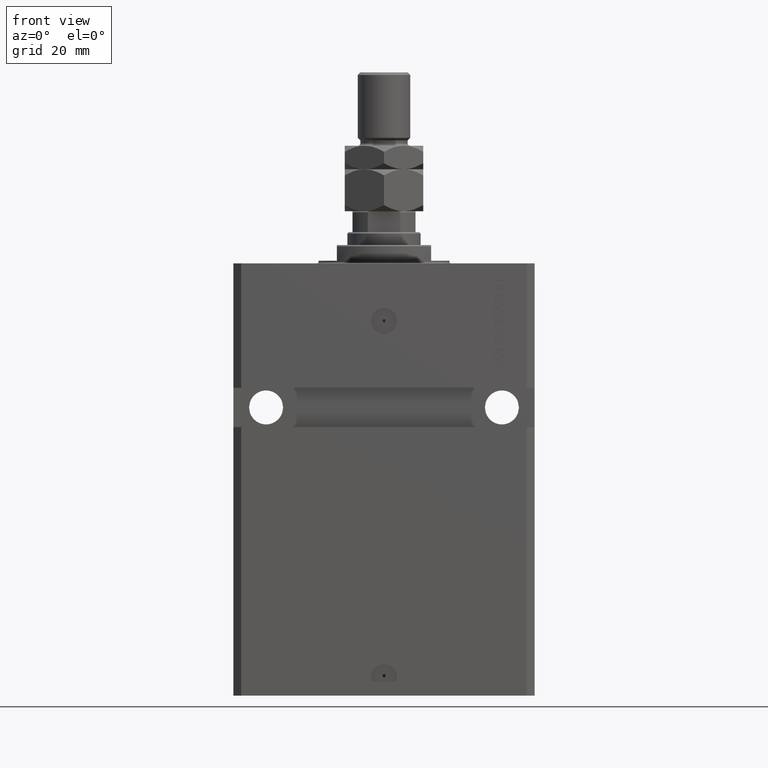
[diagram: clean part render]
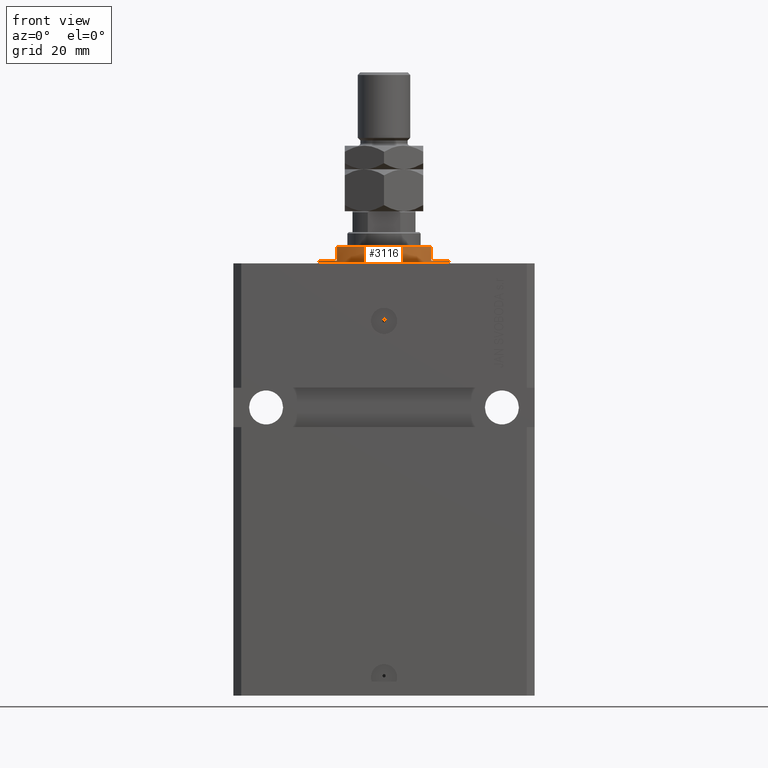
[diagram: same view with one face highlighted and labeled with its STEP entity id]
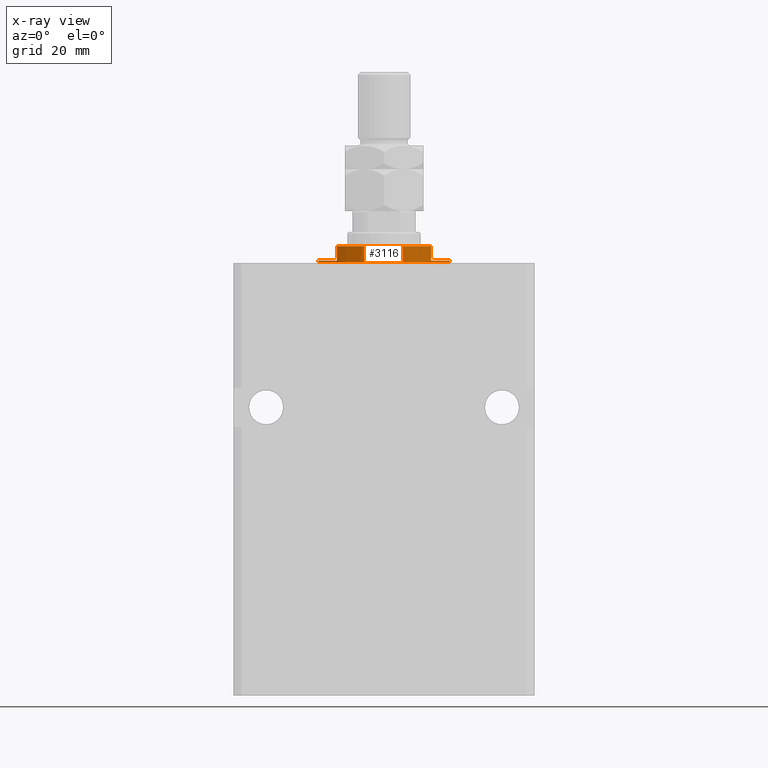
[diagram: x-ray of the same camera — body ghosted, the highlighted face saturated]
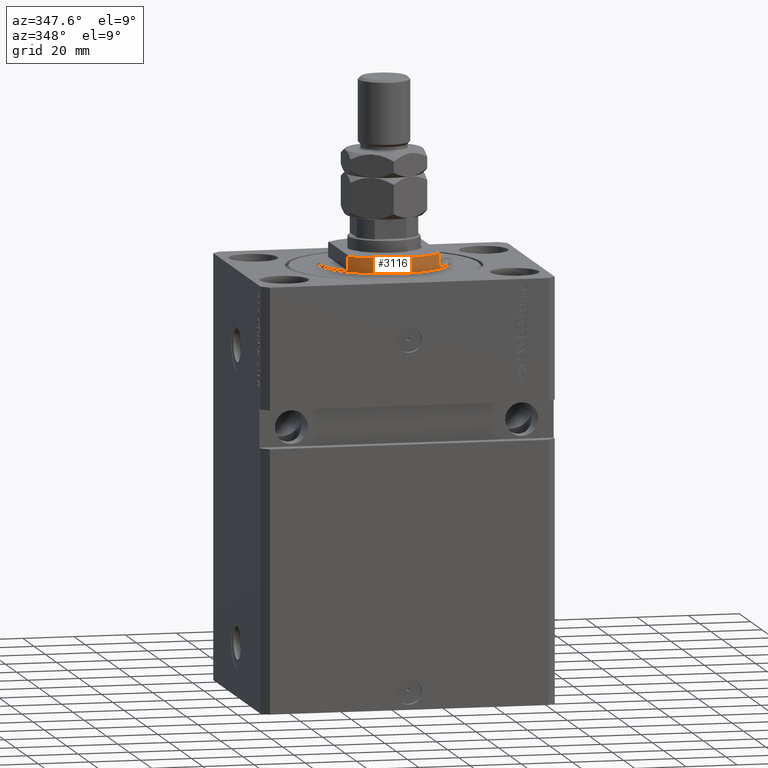
[diagram: same view with one face highlighted and labeled with its STEP entity id]
A machine part, front view. The second image highlights one B-rep face of the part: STEP entity #3116.
The next image is the same camera in x-ray: the body ghosted, the highlighted face saturated — about 0% of this face is hidden behind the body in this view.
A second angle (auxiliary view) of the same face is appended — the face is thin or edge-on in the first view.
In plain terms, the highlighted cylindrical surface (partial cylindrical patch) has radius 25 mm, axis along (0, 0, -1).
Its self-contained STEP definition (entity closure, byte-faithful):
#728 = CARTESIAN_POINT ( 'NONE',  ( 18.00000000000000000, -17.34935157289747920, -1.000000000000000000 ) ) ;
#1183 = CIRCLE ( 'NONE', #8083, 25.00000000000000000 ) ;
#1363 = DIRECTION ( 'NONE',  ( -1.000000000000000000, 0.000000000000000000, 0.000000000000000000 ) ) ;
#2194 = AXIS2_PLACEMENT_3D ( 'NONE', #22307, #3327, #17996 ) ;
#2654 = CARTESIAN_POINT ( 'NONE',  ( -25.00000000000000000, 3.061616997868383043E-15, -7.000000000000000000 ) ) ;
#3116 = ADVANCED_FACE ( 'NONE', ( #9331 ), #14368, .T. ) ;
#3327 = DIRECTION ( 'NONE',  ( -0.000000000000000000, -0.000000000000000000, -1.000000000000000000 ) ) ;
#4687 = DIRECTION ( 'NONE',  ( 0.000000000000000000, 0.000000000000000000, -1.000000000000000000 ) ) ;
#5671 = CARTESIAN_POINT ( 'NONE',  ( 0.000000000000000000, 0.000000000000000000, -1.000000000000000000 ) ) ;
#5870 = CARTESIAN_POINT ( 'NONE',  ( 25.00000000000000000, 0.000000000000000000, -0.4999999999999995559 ) ) ;
#6704 = EDGE_CURVE ( 'NONE', #13007, #22222, #23253, .T. ) ;
#7907 = ORIENTED_EDGE ( 'NONE', *, *, #41506, .T. ) ;
#7974 = VERTEX_POINT ( 'NONE', #14575 ) ;
#8083 = AXIS2_PLACEMENT_3D ( 'NONE', #35188, #34947, #31575 ) ;
#8578 = DIRECTION ( 'NONE',  ( 0.000000000000000000, 0.000000000000000000, -1.000000000000000000 ) ) ;
#8629 = VERTEX_POINT ( 'NONE', #23733 ) ;
#9331 = FACE_OUTER_BOUND ( 'NONE', #25041, .T. ) ;
#10978 = DIRECTION ( 'NONE',  ( 1.000000000000000000, 0.000000000000000000, 0.000000000000000000 ) ) ;
#13007 = VERTEX_POINT ( 'NONE', #25618 ) ;
#13967 = EDGE_CURVE ( 'NONE', #17196, #41959, #1183, .T. ) ;
#14368 = CYLINDRICAL_SURFACE ( 'NONE', #35521, 25.00000000000000000 ) ;
#14457 = AXIS2_PLACEMENT_3D ( 'NONE', #17990, #29030, #32629 ) ;
#14487 = ORIENTED_EDGE ( 'NONE', *, *, #31824, .F. ) ;
#14575 = CARTESIAN_POINT ( 'NONE',  ( -18.00000000000000000, -17.34935157289747920, -6.499999999999969802 ) ) ;
#15567 = CARTESIAN_POINT ( 'NONE',  ( 25.00000000000000000, 0.000000000000000000, -1.000000000000000000 ) ) ;
#15673 = ORIENTED_EDGE ( 'NONE', *, *, #35972, .T. ) ;
#17196 = VERTEX_POINT ( 'NONE', #15567 ) ;
#17401 = DIRECTION ( 'NONE',  ( 0.000000000000000000, 0.000000000000000000, -1.000000000000000000 ) ) ;
#17990 = CARTESIAN_POINT ( 'NONE',  ( 0.000000000000000000, 0.000000000000000000, -6.499999999999971578 ) ) ;
#17996 = DIRECTION ( 'NONE',  ( 1.000000000000000000, 0.000000000000000000, 0.000000000000000000 ) ) ;
#19249 = VECTOR ( 'NONE', #23841, 1000.000000000000000 ) ;
#19513 = CARTESIAN_POINT ( 'NONE',  ( -25.00000000000000000, 3.061616997868383043E-15, -0.4999999999999995559 ) ) ;
#19627 = ORIENTED_EDGE ( 'NONE', *, *, #13967, .F. ) ;
#20475 = LINE ( 'NONE', #42323, #19249 ) ;
#20693 = CIRCLE ( 'NONE', #14457, 25.00000000000000000 ) ;
#22222 = VERTEX_POINT ( 'NONE', #38973 ) ;
#22307 = CARTESIAN_POINT ( 'NONE',  ( 0.000000000000000000, 0.000000000000000000, -0.4999999999999995559 ) ) ;
#23253 = CIRCLE ( 'NONE', #28600, 25.00000000000000000 ) ;
#23733 = CARTESIAN_POINT ( 'NONE',  ( 18.00000000000000000, -17.34935157289747920, -6.499999999999971578 ) ) ;
#23841 = DIRECTION ( 'NONE',  ( -0.000000000000000000, -0.000000000000000000, 1.000000000000000000 ) ) ;
#24059 = VERTEX_POINT ( 'NONE', #19513 ) ;
#25041 = EDGE_LOOP ( 'NONE', ( #14487, #40629, #7907, #39476, #25303, #19627, #15673, #43659 ) ) ;
#25303 = ORIENTED_EDGE ( 'NONE', *, *, #46267, .F. ) ;
#25618 = CARTESIAN_POINT ( 'NONE',  ( -18.00000000000000000, -17.34935157289747920, -1.000000000000000000 ) ) ;
#25948 = VERTEX_POINT ( 'NONE', #5870 ) ;
#26313 = EDGE_CURVE ( 'NONE', #25948, #24059, #29805, .T. ) ;
#28089 = VECTOR ( 'NONE', #4687, 1000.000000000000000 ) ;
#28128 = DIRECTION ( 'NONE',  ( -0.000000000000000000, -0.000000000000000000, 1.000000000000000000 ) ) ;
#28600 = AXIS2_PLACEMENT_3D ( 'NONE', #5671, #8578, #1363 ) ;
#28763 = DIRECTION ( 'NONE',  ( -0.000000000000000000, -0.000000000000000000, 1.000000000000000000 ) ) ;
#28900 = EDGE_CURVE ( 'NONE', #7974, #8629, #20693, .T. ) ;
#29030 = DIRECTION ( 'NONE',  ( 0.000000000000000000, 0.000000000000000000, 1.000000000000000000 ) ) ;
#29805 = CIRCLE ( 'NONE', #2194, 25.00000000000000000 ) ;
#31575 = DIRECTION ( 'NONE',  ( -1.000000000000000000, 0.000000000000000000, 0.000000000000000000 ) ) ;
#31824 = EDGE_CURVE ( 'NONE', #22222, #24059, #43243, .T. ) ;
#32102 = LINE ( 'NONE', #46761, #28089 ) ;
#32629 = DIRECTION ( 'NONE',  ( -1.000000000000000000, 0.000000000000000000, 0.000000000000000000 ) ) ;
#34947 = DIRECTION ( 'NONE',  ( 0.000000000000000000, 0.000000000000000000, -1.000000000000000000 ) ) ;
#35188 = CARTESIAN_POINT ( 'NONE',  ( 0.000000000000000000, 0.000000000000000000, -1.000000000000000000 ) ) ;
#35521 = AXIS2_PLACEMENT_3D ( 'NONE', #36672, #28763, #10978 ) ;
#35972 = EDGE_CURVE ( 'NONE', #17196, #25948, #20475, .T. ) ;
#36672 = CARTESIAN_POINT ( 'NONE',  ( 0.000000000000000000, 0.000000000000000000, -7.000000000000000000 ) ) ;
#38973 = CARTESIAN_POINT ( 'NONE',  ( -25.00000000000000000, 3.061616997868383043E-15, -1.000000000000000000 ) ) ;
#39244 = CARTESIAN_POINT ( 'NONE',  ( -18.00000000000000000, -17.34935157289747920, -7.000000000000000000 ) ) ;
#39476 = ORIENTED_EDGE ( 'NONE', *, *, #28900, .T. ) ;
#39863 = VECTOR ( 'NONE', #28128, 1000.000000000000000 ) ;
#40629 = ORIENTED_EDGE ( 'NONE', *, *, #6704, .F. ) ;
#41135 = VECTOR ( 'NONE', #17401, 1000.000000000000000 ) ;
#41506 = EDGE_CURVE ( 'NONE', #13007, #7974, #43306, .T. ) ;
#41959 = VERTEX_POINT ( 'NONE', #728 ) ;
#42323 = CARTESIAN_POINT ( 'NONE',  ( 25.00000000000000000, 0.000000000000000000, -7.000000000000000000 ) ) ;
#43243 = LINE ( 'NONE', #2654, #39863 ) ;
#43306 = LINE ( 'NONE', #39244, #41135 ) ;
#43659 = ORIENTED_EDGE ( 'NONE', *, *, #26313, .T. ) ;
#46267 = EDGE_CURVE ( 'NONE', #41959, #8629, #32102, .T. ) ;
#46761 = CARTESIAN_POINT ( 'NONE',  ( 18.00000000000000000, -17.34935157289747920, -7.000000000000000000 ) ) ;